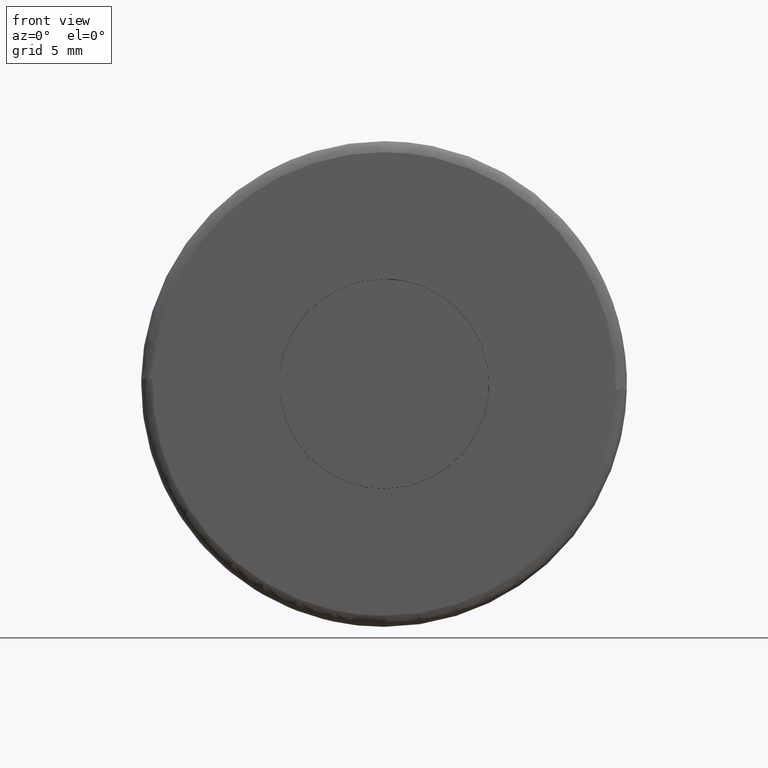
[diagram: clean part render]
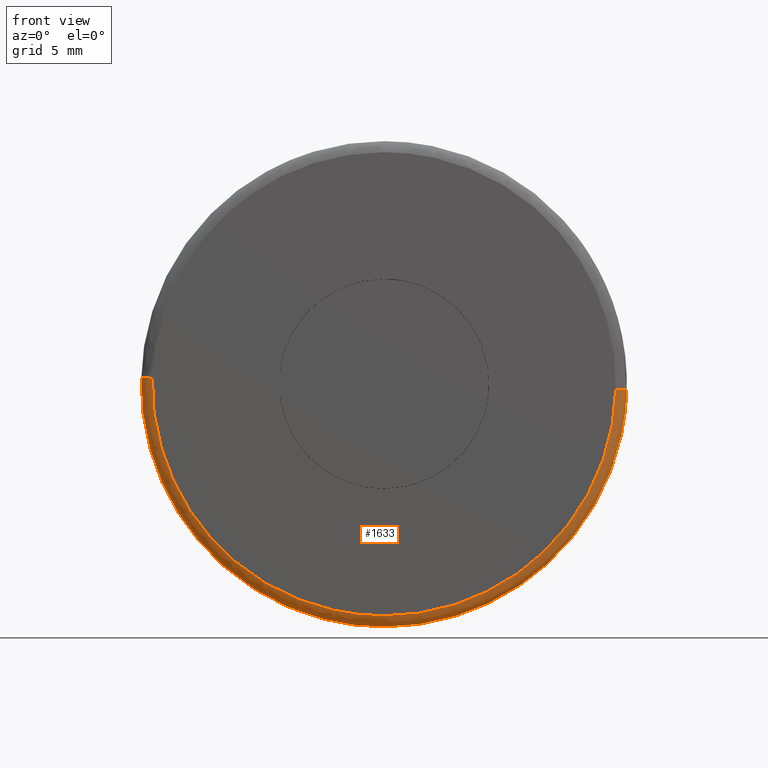
[diagram: same view with one face highlighted and labeled with its STEP entity id]
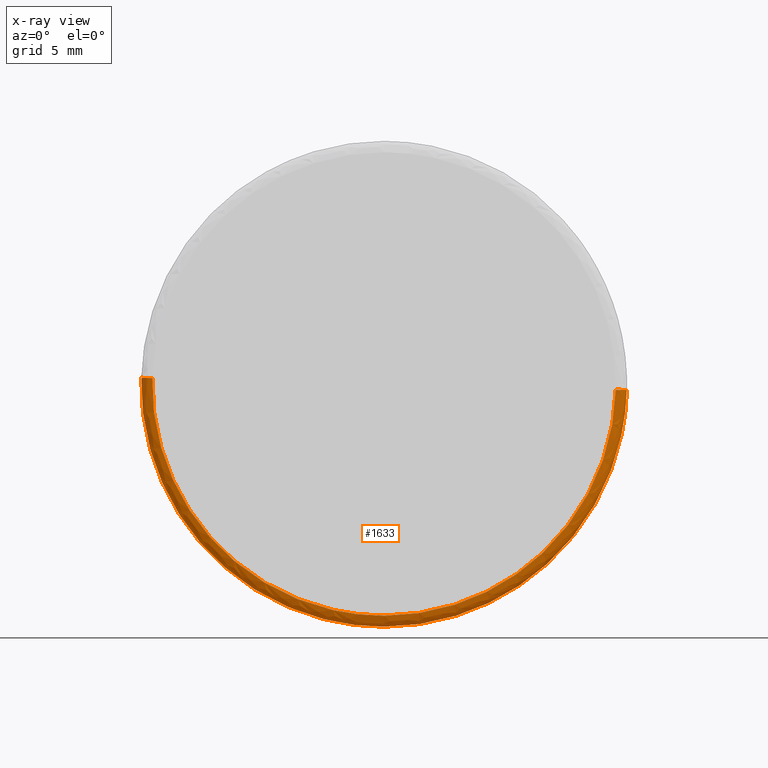
[diagram: x-ray of the same camera — body ghosted, the highlighted face saturated]
A machine part, front view. The second image highlights one B-rep face of the part: STEP entity #1633.
The next image is the same camera in x-ray: the body ghosted, the highlighted face saturated — about 0% of this face is hidden behind the body in this view.
In plain terms, the highlighted face is a freeform B-spline surface patch.
Its self-contained STEP definition (entity closure, byte-faithful):
#1330=CARTESIAN_POINT('',(-10.996526082116301,0.499999999849660,0.276431049876814));
#1331=VERTEX_POINT('',#1330);
#1421=CARTESIAN_POINT('',(10.996526082116301,0.499999999849660,-0.276431049876814));
#1422=VERTEX_POINT('',#1421);
#1438=CARTESIAN_POINT('',(0.0,0.500000000000000,-11.0));
#1439=VERTEX_POINT('',#1438);
#1440=CARTESIAN_POINT('',(0.0,0.500000000000000,-11.0));
#1441=CARTESIAN_POINT('',(10.726956637986941,0.500000000000000,-11.0));
#1442=CARTESIAN_POINT('',(10.996526082116297,0.499999999849660,-0.276431049876814));
#1450=(BOUNDED_CURVE()B_SPLINE_CURVE(2,(#1440,#1441,#1442),.UNSPECIFIED.,.F.,.U.)B_SPLINE_CURVE_WITH_KNOTS((3,3),(0.0,0.245579891769804),.UNSPECIFIED.)CURVE()GEOMETRIC_REPRESENTATION_ITEM()RATIONAL_B_SPLINE_CURVE((1.0,0.712285260094731,0.989826157681569))REPRESENTATION_ITEM(''));
#1451=EDGE_CURVE('',#1439,#1422,#1450,.T.);
#1453=CARTESIAN_POINT('',(-10.996526082116294,0.499999999849660,0.276431049876814));
#1454=CARTESIAN_POINT('',(-10.999999999999998,0.500000000000000,0.138237353357276));
#1455=CARTESIAN_POINT('',(-11.0,0.500000000000000,-1.962843E-016));
#1456=CARTESIAN_POINT('',(-11.0,0.500000000000000,-11.0));
#1457=CARTESIAN_POINT('',(0.0,0.500000000000000,-11.0));
#1465=(BOUNDED_CURVE()B_SPLINE_CURVE(2,(#1453,#1454,#1455,#1456,#1457),.UNSPECIFIED.,.F.,.U.)B_SPLINE_CURVE_WITH_KNOTS((3,2,3),(0.745579891769804,0.750000000000000,1.0),.UNSPECIFIED.)CURVE()GEOMETRIC_REPRESENTATION_ITEM()RATIONAL_B_SPLINE_CURVE((0.989826157681569,0.994821521091817,1.0,0.707106781186548,1.0))REPRESENTATION_ITEM(''));
#1466=EDGE_CURVE('',#1331,#1439,#1465,.T.);
#1546=CARTESIAN_POINT('',(-10.995309619092511,0.534862108367399,0.276400470387491));
#1547=CARTESIAN_POINT('',(-11.271710089479997,0.534862108367399,-10.718909148705009));
#1548=CARTESIAN_POINT('',(-0.276400470387494,0.534862108367399,-10.995309619092511));
#1549=CARTESIAN_POINT('',(10.718909148705009,0.534862108367399,-11.271710089479997));
#1550=CARTESIAN_POINT('',(10.995309619092511,0.534862108367399,-0.276400470387495));
#1551=CARTESIAN_POINT('',(-11.035383471475715,-0.038668232689629,0.277407848263392));
#1552=CARTESIAN_POINT('',(-11.312791319739109,-0.038668232689629,-10.757975623212317));
#1553=CARTESIAN_POINT('',(-0.277407848263396,-0.038668232689629,-11.035383471475715));
#1554=CARTESIAN_POINT('',(10.757975623212317,-0.038668232689629,-11.312791319739109));
#1555=CARTESIAN_POINT('',(11.035383471475715,-0.038668232689629,-0.277407848263396));
#1556=CARTESIAN_POINT('',(-10.462019314916253,0.001203848114836,0.262994600427135));
#1557=CARTESIAN_POINT('',(-10.725013915343393,0.001203848114836,-10.199024714489116));
#1558=CARTESIAN_POINT('',(-0.262994600427138,0.001203848114836,-10.462019314916253));
#1559=CARTESIAN_POINT('',(10.199024714489116,0.001203848114836,-10.725013915343393));
#1560=CARTESIAN_POINT('',(10.462019314916253,0.001203848114836,-0.262994600427139));
#1568=(BOUNDED_SURFACE()B_SPLINE_SURFACE(2,2,((#1546,#1551,#1556),(#1547,#1552,#1557),(#1548,#1553,#1558),(#1549,#1554,#1559),(#1550,#1555,#1560)),.UNSPECIFIED.,.F.,.F.,.U.)B_SPLINE_SURFACE_WITH_KNOTS((3,2,3),(3,3),(0.0,18.223380605767669,36.446761211535332),(0.0,0.911185589125644),.UNSPECIFIED.)GEOMETRIC_REPRESENTATION_ITEM()RATIONAL_B_SPLINE_SURFACE(((0.910892954670255,0.599412787746450,0.915966905091292),(0.644098585182388,0.423848846945447,0.647686409932507),(0.910892954670255,0.599412787746450,0.915966905091292),(0.644098585182388,0.423848846945447,0.647686409932507),(0.910892954670255,0.599412787746450,0.915966905091292)))REPRESENTATION_ITEM('')SURFACE());
#1569=CARTESIAN_POINT('',(-10.496683987891350,-8.777302E-016,0.263866002177428));
#1570=VERTEX_POINT('',#1569);
#1571=CARTESIAN_POINT('',(0.0,-1.942890E-015,-10.500000000000000));
#1572=VERTEX_POINT('',#1571);
#1573=CARTESIAN_POINT('',(-10.496683987891345,-8.777302E-016,0.263866002177428));
#1574=CARTESIAN_POINT('',(-10.499999999999996,-1.942890E-015,0.131953837307392));
#1575=CARTESIAN_POINT('',(-10.500000000000000,-1.942890E-015,-1.962843E-016));
#1576=CARTESIAN_POINT('',(-10.500000000000000,-1.942890E-015,-10.500000000000000));
#1577=CARTESIAN_POINT('',(0.0,-1.942890E-015,-10.500000000000000));
#1585=(BOUNDED_CURVE()B_SPLINE_CURVE(2,(#1573,#1574,#1575,#1576,#1577),.UNSPECIFIED.,.F.,.U.)B_SPLINE_CURVE_WITH_KNOTS((3,2,3),(0.745579891769411,0.750000000000000,1.0),.UNSPECIFIED.)CURVE()GEOMETRIC_REPRESENTATION_ITEM()RATIONAL_B_SPLINE_CURVE((0.989826157680679,0.994821521091356,1.0,0.707106781186547,1.0))REPRESENTATION_ITEM(''));
#1586=EDGE_CURVE('',#1570,#1572,#1585,.T.);
#1587=ORIENTED_EDGE('',*,*,#1586,.F.);
#1588=CARTESIAN_POINT('',(-10.996526082116299,0.499999999849661,0.276431049876814));
#1589=CARTESIAN_POINT('',(-10.996526081815713,8.342627E-010,0.276431049869156));
#1590=CARTESIAN_POINT('',(-10.496683987891348,-8.777302E-016,0.263866002177428));
#1598=(BOUNDED_CURVE()B_SPLINE_CURVE(2,(#1588,#1589,#1590),.UNSPECIFIED.,.F.,.U.)B_SPLINE_CURVE_WITH_KNOTS((3,3),(-1.723441281365617,-0.263586880654692),.UNSPECIFIED.)CURVE()GEOMETRIC_REPRESENTATION_ITEM()RATIONAL_B_SPLINE_CURVE((0.883897566920448,0.626638727652916,0.888510408443014))REPRESENTATION_ITEM(''));
#1599=EDGE_CURVE('',#1331,#1570,#1598,.T.);
#1600=ORIENTED_EDGE('',*,*,#1599,.F.);
#1601=ORIENTED_EDGE('',*,*,#1466,.T.);
#1602=ORIENTED_EDGE('',*,*,#1451,.T.);
#1603=CARTESIAN_POINT('',(10.496683987891350,-8.855398E-016,-0.263866002177424));
#1604=VERTEX_POINT('',#1603);
#1605=CARTESIAN_POINT('',(10.996526082116297,0.499999999849660,-0.276431049876814));
#1606=CARTESIAN_POINT('',(10.996526081815711,8.342620E-010,-0.276431049869155));
#1607=CARTESIAN_POINT('',(10.496683987891348,-8.855398E-016,-0.263866002177424));
#1615=(BOUNDED_CURVE()B_SPLINE_CURVE(2,(#1605,#1606,#1607),.UNSPECIFIED.,.F.,.U.)B_SPLINE_CURVE_WITH_KNOTS((3,3),(-1.723441281365617,-0.263586880654691),.UNSPECIFIED.)CURVE()GEOMETRIC_REPRESENTATION_ITEM()RATIONAL_B_SPLINE_CURVE((0.883897566920448,0.626638727652916,0.888510408443014))REPRESENTATION_ITEM(''));
#1616=EDGE_CURVE('',#1422,#1604,#1615,.T.);
#1617=ORIENTED_EDGE('',*,*,#1616,.T.);
#1618=CARTESIAN_POINT('',(0.0,-1.942890E-015,-10.500000000000000));
#1619=CARTESIAN_POINT('',(10.239367699873592,-1.942890E-015,-10.500000000000000));
#1620=CARTESIAN_POINT('',(10.496683987891345,-8.855398E-016,-0.263866002177424));
#1628=(BOUNDED_CURVE()B_SPLINE_CURVE(2,(#1618,#1619,#1620),.UNSPECIFIED.,.F.,.U.)B_SPLINE_CURVE_WITH_KNOTS((3,3),(0.0,0.245579891769411),.UNSPECIFIED.)CURVE()GEOMETRIC_REPRESENTATION_ITEM()RATIONAL_B_SPLINE_CURVE((1.0,0.712285260095192,0.989826157680679))REPRESENTATION_ITEM(''));
#1629=EDGE_CURVE('',#1572,#1604,#1628,.T.);
#1630=ORIENTED_EDGE('',*,*,#1629,.F.);
#1631=EDGE_LOOP('',(#1587,#1600,#1601,#1602,#1617,#1630));
#1632=FACE_OUTER_BOUND('',#1631,.T.);
#1633=ADVANCED_FACE('',(#1632),#1568,.T.);